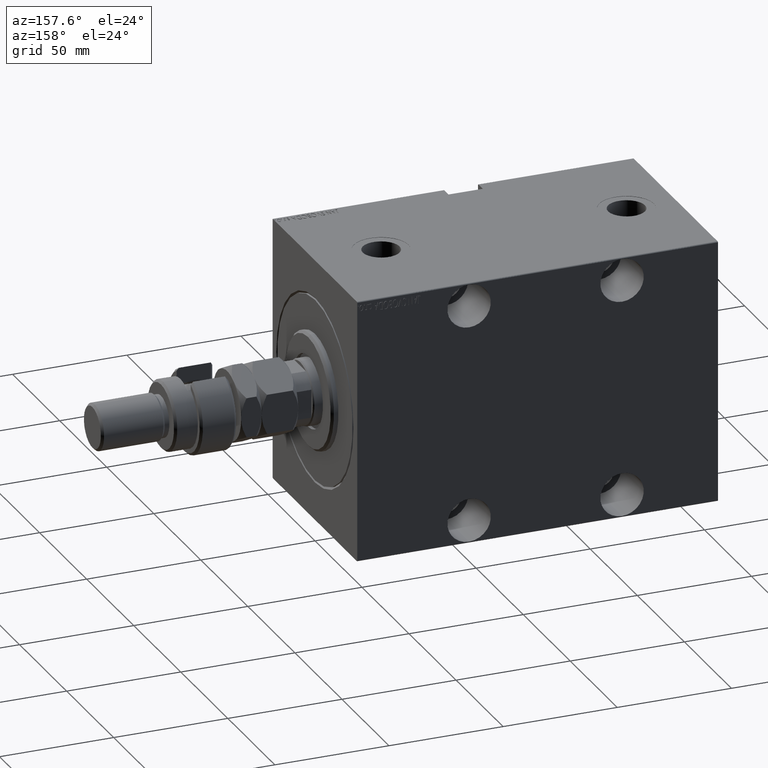
[diagram: clean part render]
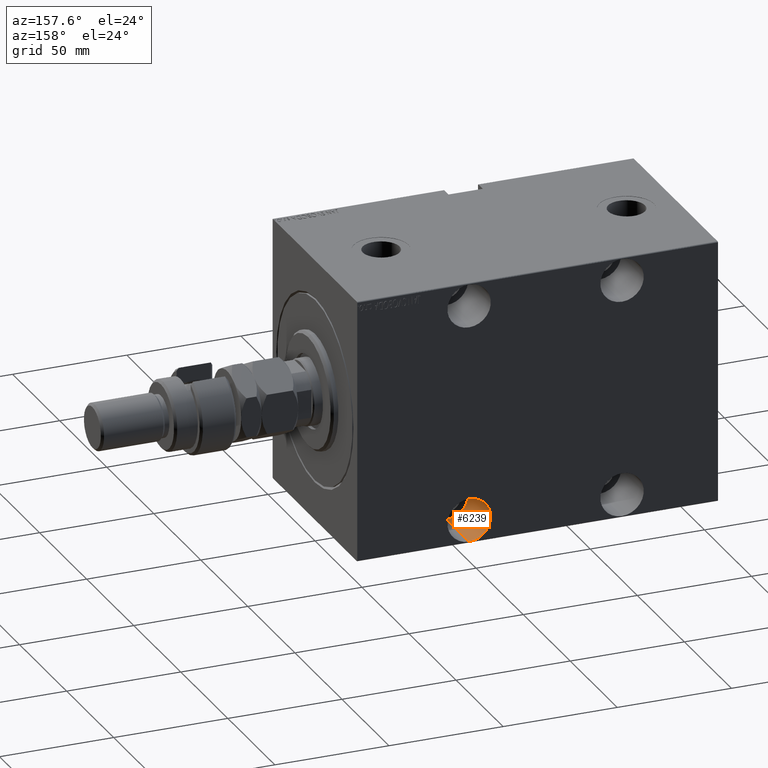
[diagram: same view with one face highlighted and labeled with its STEP entity id]
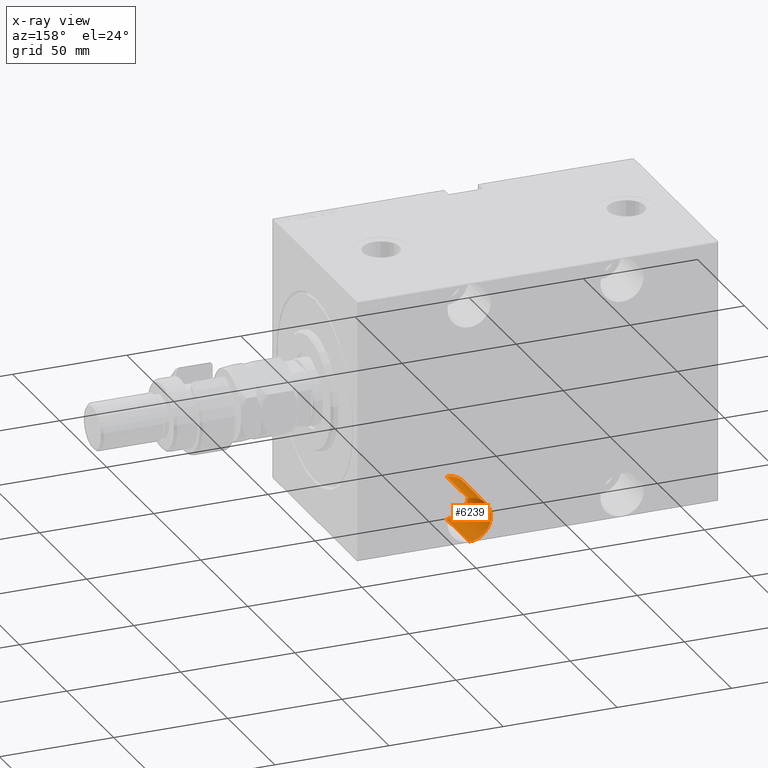
[diagram: x-ray of the same camera — body ghosted, the highlighted face saturated]
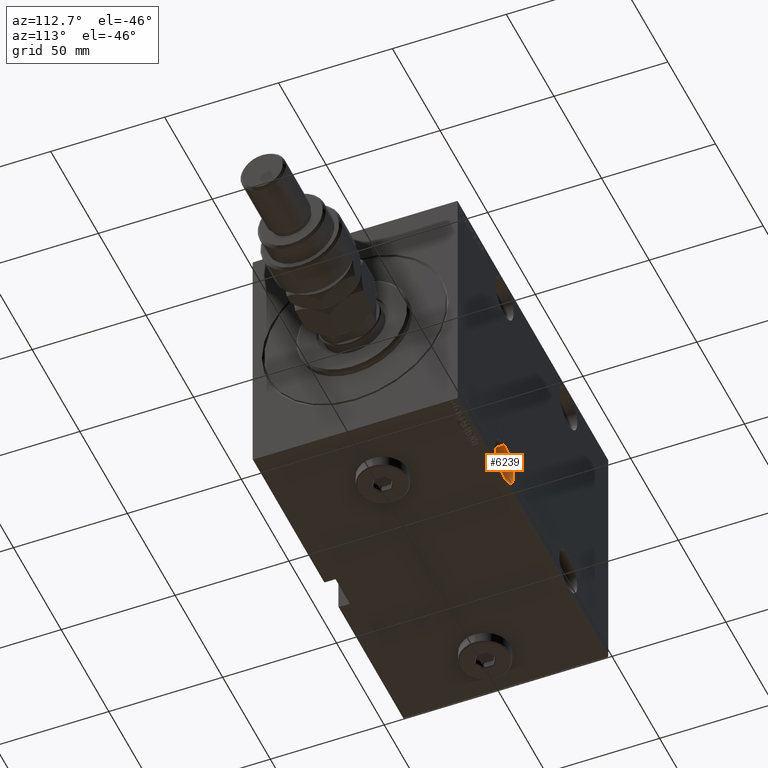
[diagram: same view with one face highlighted and labeled with its STEP entity id]
A machine part, auxiliary view. The second image highlights one B-rep face of the part: STEP entity #6239.
The next image is the same camera in x-ray: the body ghosted, the highlighted face saturated — about 0% of this face is hidden behind the body in this view.
A second angle (auxiliary view) of the same face is appended — the face is thin or edge-on in the first view.
In plain terms, the highlighted cylindrical surface (edge-blend (fillet) strip) has radius 9.5 mm, axis along (0, 1, -0).
Its self-contained STEP definition (entity closure, byte-faithful):
#775 = VERTEX_POINT ( 'NONE', #46585 ) ;
#5988 = CIRCLE ( 'NONE', #37247, 9.500000000000001776 ) ;
#6051 = EDGE_LOOP ( 'NONE', ( #34508, #41358, #28447, #18181 ) ) ;
#6239 = ADVANCED_FACE ( 'NONE', ( #28285 ), #21382, .F. ) ;
#6676 = VERTEX_POINT ( 'NONE', #28939 ) ;
#8922 = VERTEX_POINT ( 'NONE', #15116 ) ;
#13985 = DIRECTION ( 'NONE',  ( 0.000000000000000000, 0.000000000000000000, -1.000000000000000000 ) ) ;
#15116 = CARTESIAN_POINT ( 'NONE',  ( 49.00000000000000000, -20.99999999999999645, -57.00000000000001421 ) ) ;
#16102 = EDGE_CURVE ( 'NONE', #8922, #25257, #43822, .T. ) ;
#17159 = CIRCLE ( 'NONE', #30111, 9.500000000000001776 ) ;
#17685 = AXIS2_PLACEMENT_3D ( 'NONE', #39266, #35219, #28056 ) ;
#18181 = ORIENTED_EDGE ( 'NONE', *, *, #37419, .T. ) ;
#18545 = DIRECTION ( 'NONE',  ( -0.000000000000000000, -1.000000000000000000, -0.000000000000000000 ) ) ;
#21382 = CYLINDRICAL_SURFACE ( 'NONE', #17685, 9.500000000000001776 ) ;
#23960 = EDGE_CURVE ( 'NONE', #8922, #6676, #17159, .T. ) ;
#25077 = CARTESIAN_POINT ( 'NONE',  ( 49.00000000000000000, -45.00000000000000000, -47.50000000000001421 ) ) ;
#25257 = VERTEX_POINT ( 'NONE', #43282 ) ;
#25695 = CARTESIAN_POINT ( 'NONE',  ( 49.00000000000000000, -20.99999999999999645, -57.00000000000001421 ) ) ;
#26043 = VECTOR ( 'NONE', #18545, 1000.000000000000000 ) ;
#27509 = EDGE_CURVE ( 'NONE', #6676, #775, #44062, .T. ) ;
#28056 = DIRECTION ( 'NONE',  ( 0.000000000000000000, 0.000000000000000000, -1.000000000000000000 ) ) ;
#28285 = FACE_OUTER_BOUND ( 'NONE', #6051, .T. ) ;
#28403 = DIRECTION ( 'NONE',  ( 0.000000000000000000, 0.000000000000000000, -1.000000000000000000 ) ) ;
#28447 = ORIENTED_EDGE ( 'NONE', *, *, #16102, .T. ) ;
#28939 = CARTESIAN_POINT ( 'NONE',  ( 49.00000000000000000, -20.99999999999999645, -38.00000000000001421 ) ) ;
#30111 = AXIS2_PLACEMENT_3D ( 'NONE', #46673, #46204, #13985 ) ;
#32863 = DIRECTION ( 'NONE',  ( -0.000000000000000000, -1.000000000000000000, -0.000000000000000000 ) ) ;
#34508 = ORIENTED_EDGE ( 'NONE', *, *, #27509, .F. ) ;
#35219 = DIRECTION ( 'NONE',  ( -0.000000000000000000, -1.000000000000000000, -0.000000000000000000 ) ) ;
#35809 = DIRECTION ( 'NONE',  ( 0.000000000000000000, -1.000000000000000000, 0.000000000000000000 ) ) ;
#36448 = CARTESIAN_POINT ( 'NONE',  ( 49.00000000000000000, -20.99999999999999645, -38.00000000000001421 ) ) ;
#37247 = AXIS2_PLACEMENT_3D ( 'NONE', #25077, #35809, #28403 ) ;
#37419 = EDGE_CURVE ( 'NONE', #25257, #775, #5988, .T. ) ;
#39266 = CARTESIAN_POINT ( 'NONE',  ( 49.00000000000000000, -20.99999999999999645, -47.50000000000001421 ) ) ;
#40107 = VECTOR ( 'NONE', #32863, 1000.000000000000000 ) ;
#41358 = ORIENTED_EDGE ( 'NONE', *, *, #23960, .F. ) ;
#43282 = CARTESIAN_POINT ( 'NONE',  ( 49.00000000000000000, -45.00000000000000000, -57.00000000000001421 ) ) ;
#43822 = LINE ( 'NONE', #25695, #26043 ) ;
#44062 = LINE ( 'NONE', #36448, #40107 ) ;
#46204 = DIRECTION ( 'NONE',  ( 0.000000000000000000, -1.000000000000000000, 0.000000000000000000 ) ) ;
#46585 = CARTESIAN_POINT ( 'NONE',  ( 49.00000000000000000, -45.00000000000000000, -38.00000000000001421 ) ) ;
#46673 = CARTESIAN_POINT ( 'NONE',  ( 49.00000000000000000, -20.99999999999999645, -47.50000000000001421 ) ) ;